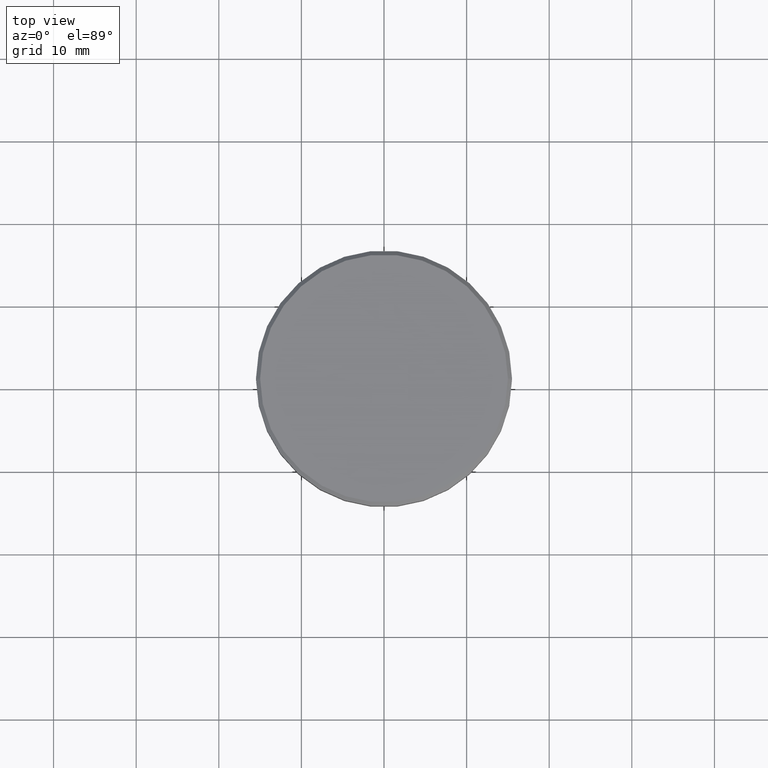
[diagram: clean part render]
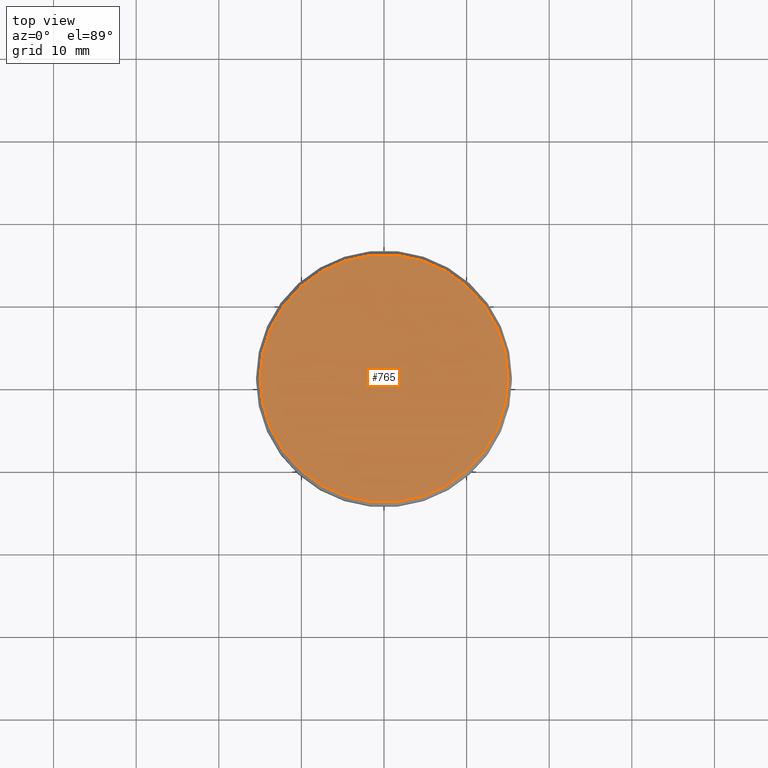
[diagram: same view with one face highlighted and labeled with its STEP entity id]
A machine part, top view. The second image highlights one B-rep face of the part: STEP entity #765.
In plain terms, the highlighted planar face has unit normal (0, -0, 1).
Its self-contained STEP definition (entity closure, byte-faithful):
#47 = EDGE_CURVE ( 'NONE', #440, #577, #584, .T. ) ;
#48 = DIRECTION ( 'NONE',  ( 1.000000000000000000, 0.000000000000000000, 0.000000000000000000 ) ) ;
#49 = DIRECTION ( 'NONE',  ( 1.000000000000000000, 0.000000000000000000, 0.000000000000000000 ) ) ;
#69 = CARTESIAN_POINT ( 'NONE',  ( 0.000000000000000000, 0.000000000000000000, 0.000000000000000000 ) ) ;
#99 = EDGE_LOOP ( 'NONE', ( #1099, #240 ) ) ;
#174 = DIRECTION ( 'NONE',  ( 0.000000000000000000, -0.000000000000000000, 1.000000000000000000 ) ) ;
#184 = DIRECTION ( 'NONE',  ( 1.000000000000000000, 0.000000000000000000, 0.000000000000000000 ) ) ;
#240 = ORIENTED_EDGE ( 'NONE', *, *, #449, .T. ) ;
#268 = AXIS2_PLACEMENT_3D ( 'NONE', #1165, #950, #48 ) ;
#301 = AXIS2_PLACEMENT_3D ( 'NONE', #69, #432, #49 ) ;
#432 = DIRECTION ( 'NONE',  ( -0.000000000000000000, -0.000000000000000000, 1.000000000000000000 ) ) ;
#440 = VERTEX_POINT ( 'NONE', #587 ) ;
#449 = EDGE_CURVE ( 'NONE', #577, #440, #665, .T. ) ;
#541 = CARTESIAN_POINT ( 'NONE',  ( 0.000000000000000000, 0.000000000000000000, 0.000000000000000000 ) ) ;
#577 = VERTEX_POINT ( 'NONE', #1149 ) ;
#584 = CIRCLE ( 'NONE', #301, 15.00000000000000000 ) ;
#587 = CARTESIAN_POINT ( 'NONE',  ( -15.00000000000000000, 0.000000000000000000, 0.000000000000000000 ) ) ;
#665 = CIRCLE ( 'NONE', #268, 15.00000000000000000 ) ;
#765 = ADVANCED_FACE ( 'NONE', ( #830 ), #987, .T. ) ;
#830 = FACE_OUTER_BOUND ( 'NONE', #99, .T. ) ;
#837 = AXIS2_PLACEMENT_3D ( 'NONE', #541, #174, #184 ) ;
#950 = DIRECTION ( 'NONE',  ( -0.000000000000000000, -0.000000000000000000, 1.000000000000000000 ) ) ;
#987 = PLANE ( 'NONE',  #837 ) ;
#1099 = ORIENTED_EDGE ( 'NONE', *, *, #47, .T. ) ;
#1149 = CARTESIAN_POINT ( 'NONE',  ( 15.00000000000000000, 1.867586368699713376E-15, 0.000000000000000000 ) ) ;
#1165 = CARTESIAN_POINT ( 'NONE',  ( 0.000000000000000000, 0.000000000000000000, 0.000000000000000000 ) ) ;